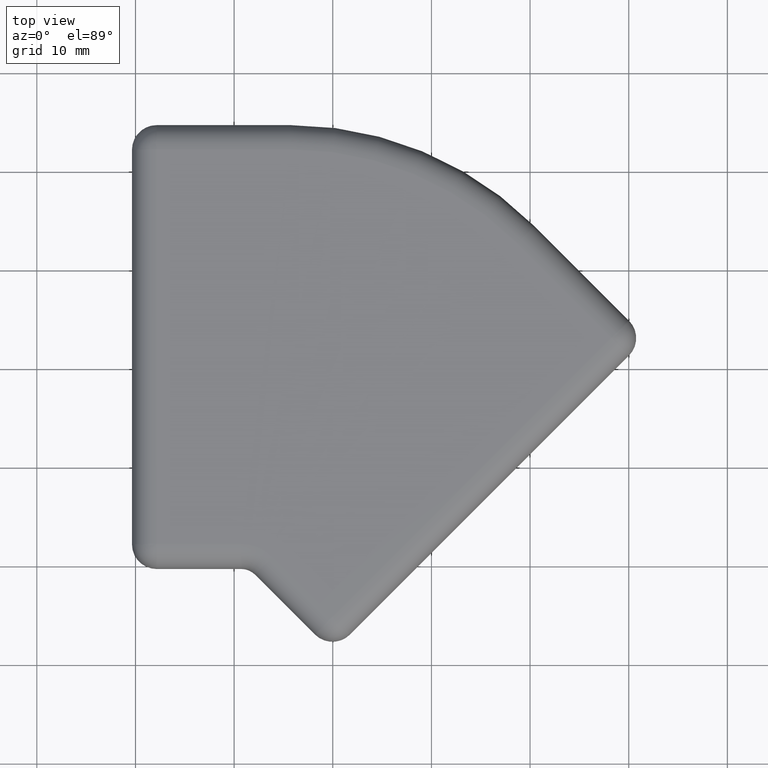
[diagram: clean part render]
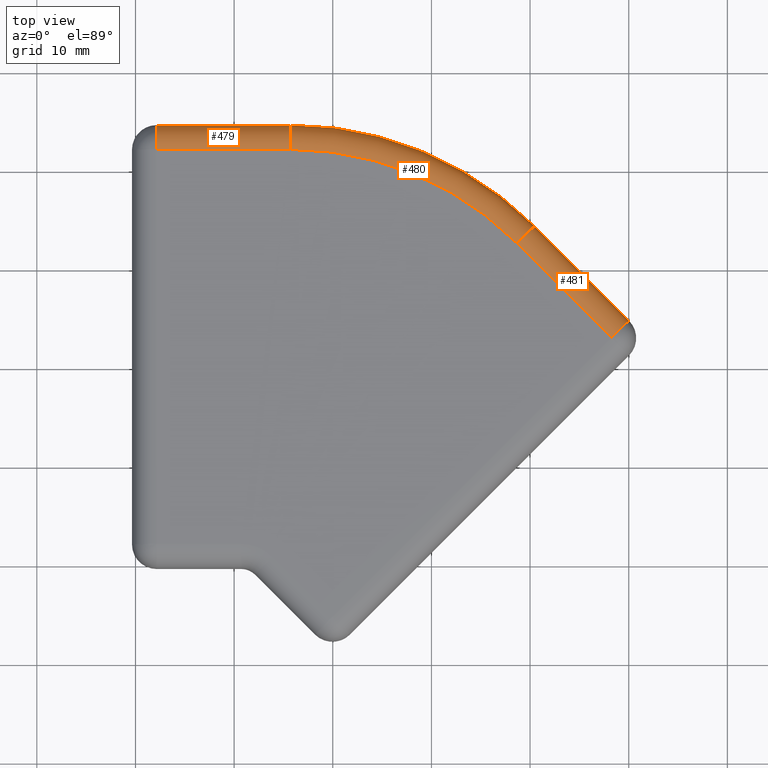
[diagram: same view with one multi-face feature highlighted, each face labeled with its STEP entity id]
A machine part, top view. The highlighted faces form ONE feature: a constant-radius fillet chain: 3 tangent blend faces with common blend radius 2.5 mm. The faces share edges in the B-rep.
Their STEP definitions:
[1] entity #481 (Cylinder):
#52=CYLINDRICAL_SURFACE('',#574,2.5);
#81=FACE_OUTER_BOUND('',#123,.T.);
#123=EDGE_LOOP('',(#427,#428,#429,#430));
#146=LINE('',#847,#170);
#152=LINE('',#887,#176);
#170=VECTOR('',#684,10.);
#176=VECTOR('',#742,10.);
#215=CIRCLE('',#573,2.5);
#216=CIRCLE('',#575,2.5);
#247=VERTEX_POINT('',#844);
#248=VERTEX_POINT('',#846);
#249=VERTEX_POINT('',#853);
#256=VERTEX_POINT('',#883);
#299=EDGE_CURVE('',#248,#247,#146,.T.);
#318=EDGE_CURVE('',#256,#247,#215,.T.);
#319=EDGE_CURVE('',#256,#249,#152,.T.);
#320=EDGE_CURVE('',#249,#248,#216,.T.);
#427=ORIENTED_EDGE('',*,*,#318,.F.);
#428=ORIENTED_EDGE('',*,*,#319,.T.);
#429=ORIENTED_EDGE('',*,*,#320,.T.);
#430=ORIENTED_EDGE('',*,*,#299,.T.);
#481=ADVANCED_FACE('',(#81),#52,.T.);
#573=AXIS2_PLACEMENT_3D('',#885,#738,#739);
#574=AXIS2_PLACEMENT_3D('',#886,#740,#741);
#575=AXIS2_PLACEMENT_3D('',#888,#743,#744);
#684=DIRECTION('',(-0.707106781178559,0.707106781194536,0.));
#738=DIRECTION('center_axis',(-0.707106781178556,0.707106781194539,0.));
#739=DIRECTION('ref_axis',(0.,0.,1.));
#740=DIRECTION('center_axis',(0.707106781178559,-0.707106781194536,0.));
#741=DIRECTION('ref_axis',(0.500000000005649,0.499999999994351,0.707106781186548));
#742=DIRECTION('',(0.707106781178559,-0.707106781194536,0.));
#743=DIRECTION('center_axis',(-0.70710678117856,0.707106781194535,0.));
#744=DIRECTION('ref_axis',(0.,0.,1.));
#844=CARTESIAN_POINT('',(20.4426188423247,14.3528476587489,0.));
#846=CARTESIAN_POINT('',(30.0228195894938,4.77264691136336,0.));
#847=CARTESIAN_POINT('',(30.0228195894938,4.77264691136336,0.));
#853=CARTESIAN_POINT('',(28.2550526365075,3.00487995841696,2.5));
#883=CARTESIAN_POINT('',(18.6748518893384,12.5850807058026,2.5));
#885=CARTESIAN_POINT('Origin',(18.6748518893384,12.5850807058026,0.));
#886=CARTESIAN_POINT('Origin',(21.7040586345093,9.5558739605632,0.));
#887=CARTESIAN_POINT('',(21.7040586345093,9.5558739605632,2.5));
#888=CARTESIAN_POINT('Origin',(28.2550526365075,3.00487995841696,0.));
[2] entity #480 (Torus):
#20=TOROIDAL_SURFACE('',#571,32.5,2.5);
#80=FACE_OUTER_BOUND('',#122,.T.);
#122=EDGE_LOOP('',(#423,#424,#425,#426));
#201=CIRCLE('',#548,35.);
#213=CIRCLE('',#570,2.5);
#214=CIRCLE('',#572,32.5);
#215=CIRCLE('',#573,2.5);
#246=VERTEX_POINT('',#842);
#247=VERTEX_POINT('',#844);
#255=VERTEX_POINT('',#879);
#256=VERTEX_POINT('',#883);
#298=EDGE_CURVE('',#247,#246,#201,.T.);
#316=EDGE_CURVE('',#255,#246,#213,.T.);
#317=EDGE_CURVE('',#255,#256,#214,.T.);
#318=EDGE_CURVE('',#256,#247,#215,.T.);
#423=ORIENTED_EDGE('',*,*,#316,.F.);
#424=ORIENTED_EDGE('',*,*,#317,.T.);
#425=ORIENTED_EDGE('',*,*,#318,.T.);
#426=ORIENTED_EDGE('',*,*,#298,.T.);
#480=ADVANCED_FACE('',(#80),#20,.T.);
#548=AXIS2_PLACEMENT_3D('',#845,#682,#683);
#570=AXIS2_PLACEMENT_3D('',#881,#732,#733);
#571=AXIS2_PLACEMENT_3D('',#882,#734,#735);
#572=AXIS2_PLACEMENT_3D('',#884,#736,#737);
#573=AXIS2_PLACEMENT_3D('',#885,#738,#739);
#682=DIRECTION('center_axis',(0.,0.,1.));
#683=DIRECTION('ref_axis',(0.707106781194539,0.707106781178556,0.));
#732=DIRECTION('center_axis',(-1.,-1.81588077907691E-12,0.));
#733=DIRECTION('ref_axis',(0.,0.,1.));
#734=DIRECTION('center_axis',(0.,0.,-1.));
#735=DIRECTION('ref_axis',(-1.,0.,0.));
#736=DIRECTION('center_axis',(0.,0.,-1.));
#737=DIRECTION('ref_axis',(0.382683432369477,0.92387953250947,0.));
#738=DIRECTION('center_axis',(-0.707106781178556,0.707106781194539,0.));
#739=DIRECTION('ref_axis',(0.,0.,1.));
#842=CARTESIAN_POINT('',(-4.30611849954726,24.6041103174995,0.));
#844=CARTESIAN_POINT('',(20.4426188423247,14.3528476587489,0.));
#845=CARTESIAN_POINT('Origin',(-4.30611849948413,-10.3958896825005,0.));
#879=CARTESIAN_POINT('',(-4.30611849954272,22.1041103174995,2.5));
#881=CARTESIAN_POINT('Origin',(-4.30611849954272,22.1041103174995,0.));
#882=CARTESIAN_POINT('Origin',(-4.30611849948413,-10.3958896825005,0.));
#883=CARTESIAN_POINT('',(18.6748518893384,12.5850807058026,2.5));
#884=CARTESIAN_POINT('Origin',(-4.30611849948413,-10.3958896825005,2.5));
#885=CARTESIAN_POINT('Origin',(18.6748518893384,12.5850807058026,0.));
[3] entity #479 (Cylinder):
#51=CYLINDRICAL_SURFACE('',#568,2.5);
#79=FACE_OUTER_BOUND('',#121,.T.);
#121=EDGE_LOOP('',(#419,#420,#421,#422));
#145=LINE('',#843,#169);
#151=LINE('',#880,#175);
#169=VECTOR('',#681,10.);
#175=VECTOR('',#731,10.);
#212=CIRCLE('',#569,2.5);
#213=CIRCLE('',#570,2.5);
#245=VERTEX_POINT('',#840);
#246=VERTEX_POINT('',#842);
#254=VERTEX_POINT('',#873);
#255=VERTEX_POINT('',#879);
#297=EDGE_CURVE('',#246,#245,#145,.T.);
#314=EDGE_CURVE('',#245,#254,#212,.T.);
#315=EDGE_CURVE('',#254,#255,#151,.T.);
#316=EDGE_CURVE('',#255,#246,#213,.T.);
#419=ORIENTED_EDGE('',*,*,#314,.T.);
#420=ORIENTED_EDGE('',*,*,#315,.T.);
#421=ORIENTED_EDGE('',*,*,#316,.T.);
#422=ORIENTED_EDGE('',*,*,#297,.T.);
#479=ADVANCED_FACE('',(#79),#51,.T.);
#568=AXIS2_PLACEMENT_3D('',#877,#727,#728);
#569=AXIS2_PLACEMENT_3D('',#878,#729,#730);
#570=AXIS2_PLACEMENT_3D('',#881,#732,#733);
#681=DIRECTION('',(-1.,-1.81589351842762E-12,0.));
#727=DIRECTION('center_axis',(1.,1.81589351842762E-12,0.));
#728=DIRECTION('ref_axis',(-1.28402161271159E-12,0.707106781186547,0.707106781186547));
#729=DIRECTION('center_axis',(1.,1.81543668986706E-12,0.));
#730=DIRECTION('ref_axis',(-1.81543668986706E-12,1.,0.));
#731=DIRECTION('',(1.,1.81589351842762E-12,0.));
#732=DIRECTION('center_axis',(-1.,-1.81588077907691E-12,0.));
#733=DIRECTION('ref_axis',(0.,0.,1.));
#840=CARTESIAN_POINT('',(-17.8545683266037,24.6041103174749,0.));
#842=CARTESIAN_POINT('',(-4.30611849954726,24.6041103174995,0.));
#843=CARTESIAN_POINT('',(-4.30611849954726,24.6041103174995,0.));
#873=CARTESIAN_POINT('',(-17.854568326599,22.1041103174749,2.5));
#877=CARTESIAN_POINT('Origin',(-3.63171902236266,22.1041103175007,0.));
#878=CARTESIAN_POINT('Origin',(-17.8545683265991,22.1041103174749,0.));
#879=CARTESIAN_POINT('',(-4.30611849954272,22.1041103174995,2.5));
#880=CARTESIAN_POINT('',(-3.63171902236266,22.1041103175007,2.5));
#881=CARTESIAN_POINT('Origin',(-4.30611849954272,22.1041103174995,0.));